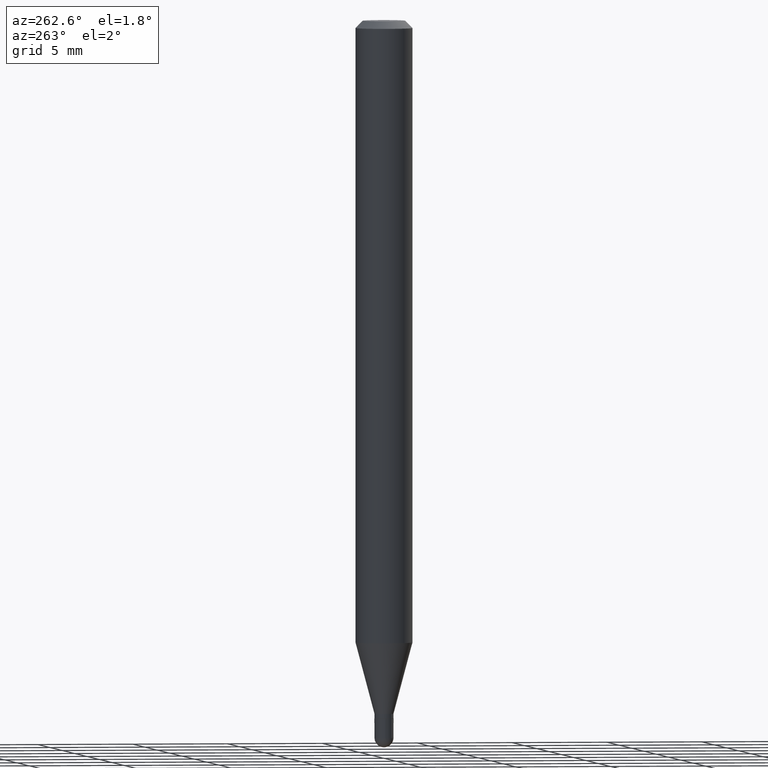
[diagram: clean part render]
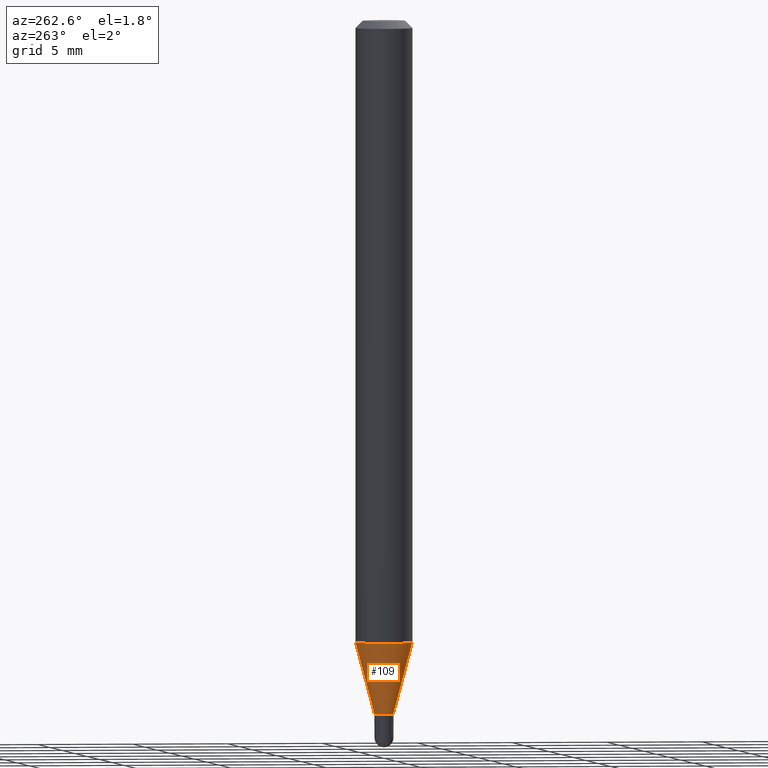
[diagram: same view with one face highlighted and labeled with its STEP entity id]
A machine part, auxiliary view. The second image highlights one B-rep face of the part: STEP entity #109.
In plain terms, the highlighted conical surface has half-angle 15 deg.
Its self-contained STEP definition (entity closure, byte-faithful):
#4 = CARTESIAN_POINT ( 'NONE',  ( -1.375643647503839622E-16, -0.01970000000000490109, -1.427099999999999591 ) ) ;
#14 = VECTOR ( 'NONE', #234, 39.37007874015748143 ) ;
#22 = CONICAL_SURFACE ( 'NONE', #355, 0.01969999999999991896, 0.2617993877991505736 ) ;
#64 = VERTEX_POINT ( 'NONE', #138 ) ;
#78 = CARTESIAN_POINT ( 'NONE',  ( 3.130790046417451577E-29, -4.469956264772435367E-15, -1.280243800722164815 ) ) ;
#93 = DIRECTION ( 'NONE',  ( -2.445463937924498510E-29, 3.491488310469463520E-15, 1.000000000000000000 ) ) ;
#99 = DIRECTION ( 'NONE',  ( -2.445463937924498510E-29, 3.491488310469463520E-15, 1.000000000000000000 ) ) ;
#101 = CARTESIAN_POINT ( 'NONE',  ( 1.399769189447740433E-16, 0.01969999999999494031, -1.427099999999999591 ) ) ;
#109 = ADVANCED_FACE ( 'NONE', ( #141 ), #22, .T. ) ;
#137 = DIRECTION ( 'NONE',  ( -2.445463937924498510E-29, 3.491488310469463520E-15, 1.000000000000000000 ) ) ;
#138 = CARTESIAN_POINT ( 'NONE',  ( 4.195754854663702092E-16, 0.05904999999999550886, -1.280243800722165037 ) ) ;
#141 = FACE_OUTER_BOUND ( 'NONE', #315, .T. ) ;
#166 = CARTESIAN_POINT ( 'NONE',  ( -1.375643647503839622E-16, -0.01970000000000490109, -1.427099999999999591 ) ) ;
#179 = CARTESIAN_POINT ( 'NONE',  ( 3.489921585812051026E-29, -4.982702967870969874E-15, -1.427099999999999591 ) ) ;
#183 = AXIS2_PLACEMENT_3D ( 'NONE', #78, #93, #338 ) ;
#185 = CARTESIAN_POINT ( 'NONE',  ( 2.797762022055723851E-16, 0.01969999999999494031, -1.427099999999999591 ) ) ;
#197 = EDGE_CURVE ( 'NONE', #64, #322, #293, .T. ) ;
#234 = DIRECTION ( 'NONE',  ( 1.839019923739602287E-15, 0.2588190451025252359, 0.9659258262890670910 ) ) ;
#235 = AXIS2_PLACEMENT_3D ( 'NONE', #179, #137, #409 ) ;
#236 = ORIENTED_EDGE ( 'NONE', *, *, #353, .T. ) ;
#248 = EDGE_CURVE ( 'NONE', #476, #322, #335, .T. ) ;
#259 = DIRECTION ( 'NONE',  ( -1.807323732225332111E-15, -0.2588190451025184635, 0.9659258262890689783 ) ) ;
#293 = CIRCLE ( 'NONE', #183, 0.05904999999999999832 ) ;
#306 = ORIENTED_EDGE ( 'NONE', *, *, #248, .T. ) ;
#315 = EDGE_LOOP ( 'NONE', ( #464, #236, #306, #508 ) ) ;
#322 = VERTEX_POINT ( 'NONE', #446 ) ;
#335 = LINE ( 'NONE', #4, #383 ) ;
#338 = DIRECTION ( 'NONE',  ( -6.982962677686265922E-15, -1.000000000000000000, 4.626330217890369336E-15 ) ) ;
#341 = DIRECTION ( 'NONE',  ( -6.982962677686265922E-15, -1.000000000000000000, 0.000000000000000000 ) ) ;
#353 = EDGE_CURVE ( 'NONE', #403, #476, #481, .T. ) ;
#355 = AXIS2_PLACEMENT_3D ( 'NONE', #451, #99, #341 ) ;
#383 = VECTOR ( 'NONE', #259, 39.37007874015748854 ) ;
#402 = EDGE_CURVE ( 'NONE', #403, #64, #452, .T. ) ;
#403 = VERTEX_POINT ( 'NONE', #185 ) ;
#409 = DIRECTION ( 'NONE',  ( -6.982962677686265922E-15, -1.000000000000000000, 0.000000000000000000 ) ) ;
#446 = CARTESIAN_POINT ( 'NONE',  ( -4.123439461173428234E-16, -0.05905000000000448779, -1.280243800722164371 ) ) ;
#451 = CARTESIAN_POINT ( 'NONE',  ( 3.489921585812051026E-29, -4.982702967870969874E-15, -1.427099999999999591 ) ) ;
#452 = LINE ( 'NONE', #101, #14 ) ;
#464 = ORIENTED_EDGE ( 'NONE', *, *, #402, .F. ) ;
#476 = VERTEX_POINT ( 'NONE', #166 ) ;
#481 = CIRCLE ( 'NONE', #235, 0.01969999999999991896 ) ;
#508 = ORIENTED_EDGE ( 'NONE', *, *, #197, .F. ) ;